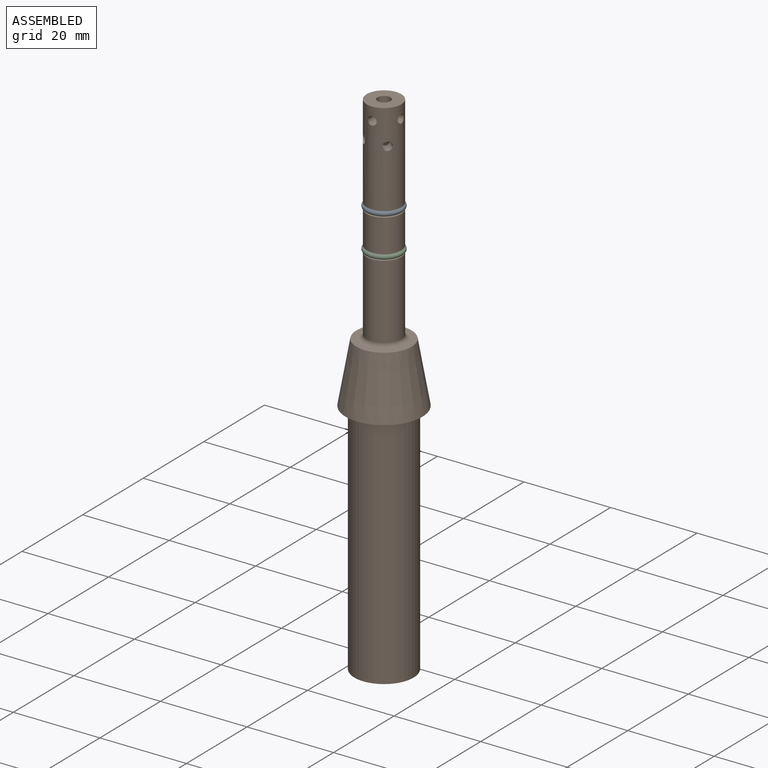
[diagram: assembled view]
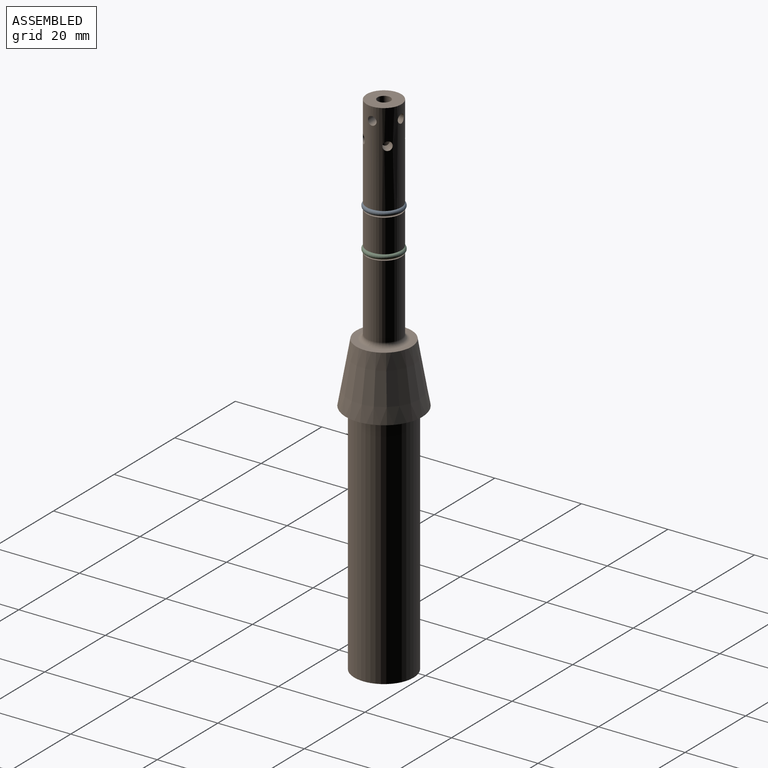
[diagram: assembled view, second angle]
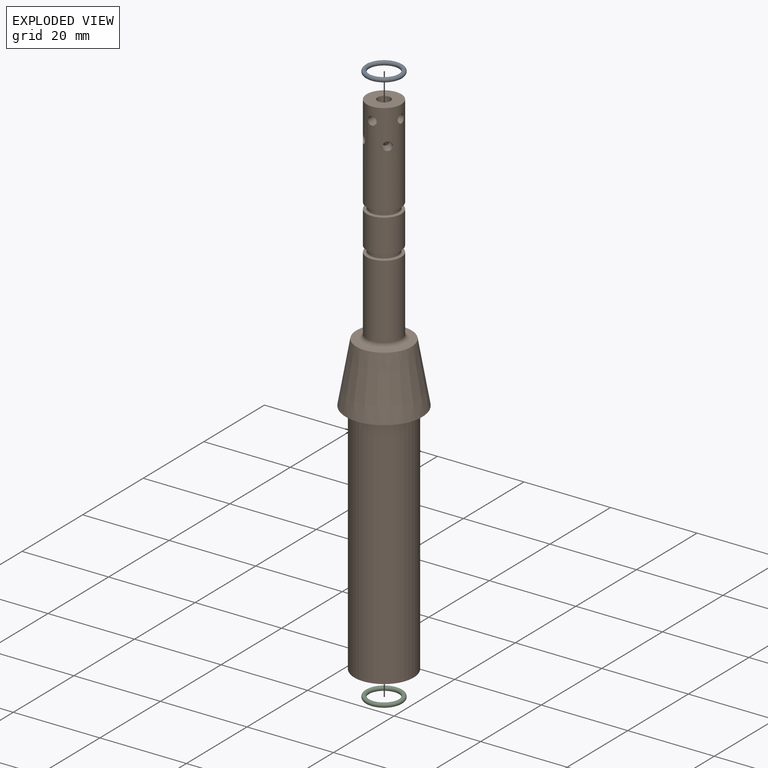
[diagram: exploded view]
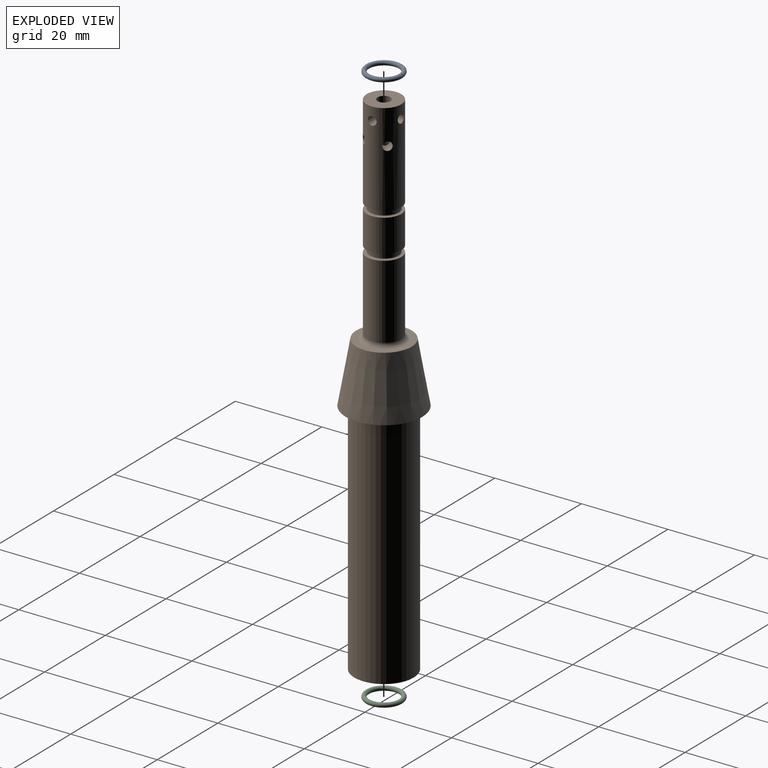
[diagram: exploded view, second angle]
ASSEMBLY  parts=3 mates=2
PART A: 1 faces, bbox 9.3x9.3x1 mm
  f0: torus R=3.8mm, axis (0,0,1), area 75mm2
PART B: 31 faces, bbox 17.7x17.7x119 mm
  f0: cylinder r=4mm len=55mm, axis (0,0,1), area 1382.3mm2, adj f1,f22
  f1: plane 8x8mm, normal (0,0,-1), area 43.2mm2, adj f0,f2
  f2: cylinder r=1.5mm len=64mm, axis (0,0,1), area 576.4mm2, adj f1,f3,f23,f24,f25,f26,f27,f28
  f3: plane 8x8mm, normal (0,0,1), area 43.2mm2, adj f2,f4
  f4: cylinder r=4mm len=21.5mm, axis (0,0,1), area 515mm2, adj f3,f5,f23,f24,f25,f26,f27,f28
  f5: plane 8x8mm, normal (0,0,-1), area 11.8mm2, adj f4,f6
  f6: torus R=3.5mm, axis (0,0,1), area 6.7mm2, adj f5,f7
  f7: cylinder r=3.3mm len=6.6mm, axis (0,0,1), area 20.7mm2, adj f6,f8
  f8: torus R=3.5mm, axis (0,0,1), area 6.7mm2, adj f7,f9
  f9: plane 8x8mm, normal (0,0,1), area 11.8mm2, adj f8,f10
  f10: cylinder r=4mm len=8mm, axis (0,0,1), area 191mm2, adj f9,f11
  f11: plane 8x8mm, normal (0,0,-1), area 11.8mm2, adj f10,f12
  f12: torus R=3.5mm, axis (0,0,1), area 6.7mm2, adj f11,f13
  f13: cylinder r=3.3mm len=6.6mm, axis (0,0,1), area 20.7mm2, adj f12,f14
  f14: torus R=3.5mm, axis (0,0,1), area 6.7mm2, adj f13,f15
  f15: plane 8x8mm, normal (0,0,1), area 11.8mm2, adj f14,f16
  f16: cylinder r=4mm len=17.1mm, axis (0,0,1), area 429.8mm2, adj f15,f17
  f17: torus R=5mm, axis (0,0,1), area 43.1mm2, adj f16,f18
  f18: plane 12.76x12.76mm, normal (0,0,1), area 49.4mm2, adj f17,f19
  f19: cone r=6.38mm half-angle=10deg, axis (0,0,-1), area 680.2mm2, adj f18,f20
  f20: plane 17.7x17.7mm, normal (0,0,-1), area 98.6mm2, adj f19,f21
  f21: cylinder r=6.85mm len=55mm, axis (0,0,1), area 2367.2mm2, adj f20,f22
  f22: plane 13.7x13.7mm, normal (0,0,-1), area 97.1mm2, adj f0,f21
  f23: cylinder r=1mm len=2.88mm, axis (1,0,0), area 16.5mm2, adj f2,f4
  f24: cylinder r=1mm len=2.88mm, axis (1,0,0), area 16.5mm2, adj f2,f4
  f25: cylinder r=1mm len=2.88mm, axis (0,1,0), area 16.5mm2, adj f2,f4
  f26: cylinder r=1mm len=2.88mm, axis (0,1,0), area 16.5mm2, adj f2,f4
  f27: cylinder r=1mm len=3.45mm, axis (0.71,-0.71,0), area 16.5mm2, adj f2,f4
  f28: cylinder r=1mm len=3.45mm, axis (0.71,-0.71,0), area 16.5mm2, adj f2,f4
  f29: cylinder r=1mm len=3.45mm, axis (0.71,0.71,0), area 16.5mm2, adj f2,f4
  f30: cylinder r=1mm len=3.45mm, axis (0.71,0.71,0), area 16.5mm2, adj f2,f4
PART C: same geometry as A
PLACE A t=(56.36,21.87,7.61)mm
PLACE B t=(56.36,21.87,-47.22)mm
PLACE C t=(56.36,21.87,-1.42)mm
MATE cylindrical B.f0 <-> C.f0  axis (0,0,-1) through (56.36,21.87,8.28)mm
MATE cylindrical B.f0 <-> A.f0  axis (0,0,-1) through (56.36,21.87,-0.72)mm
